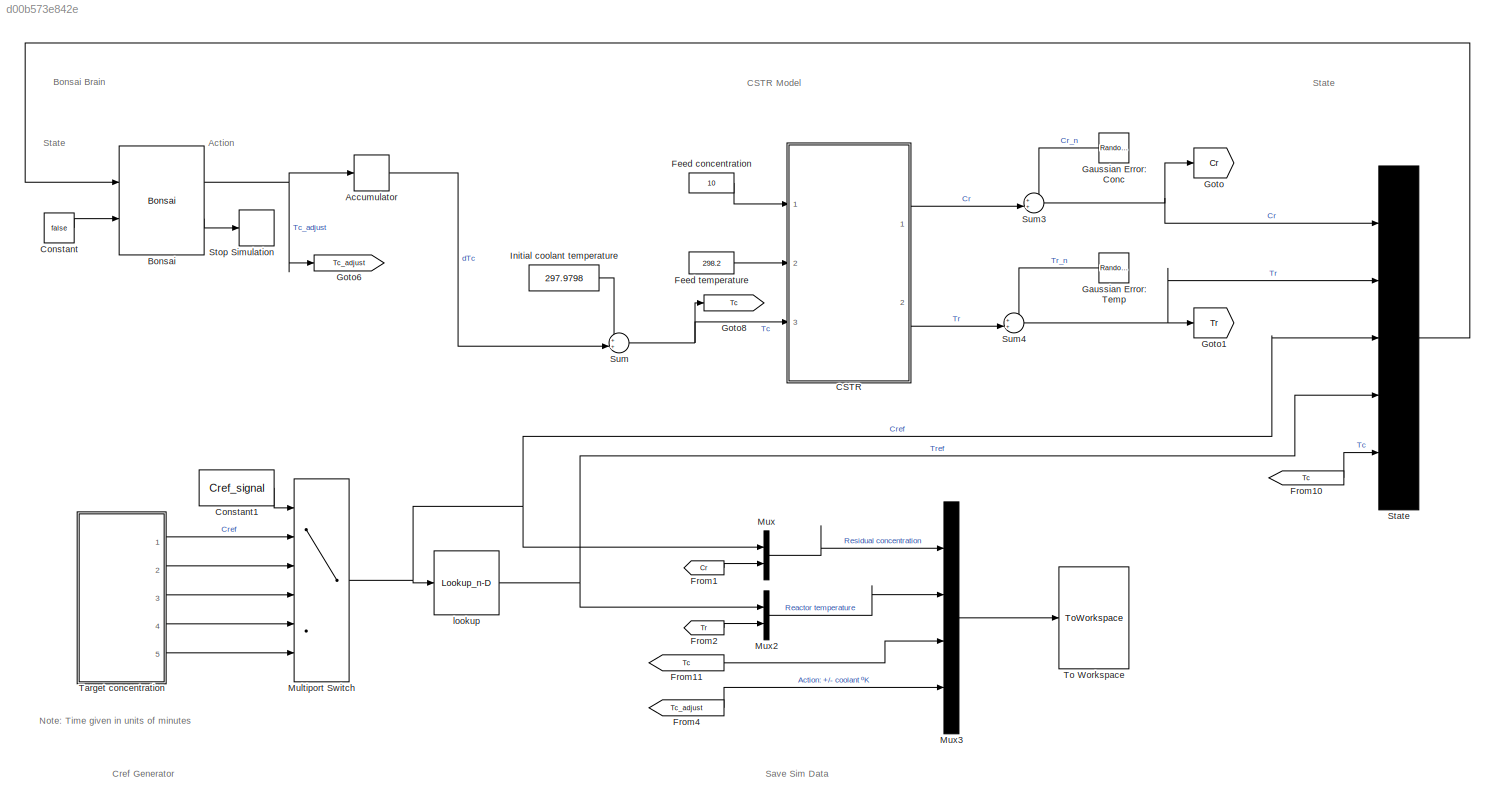
MODEL slx_d00b573e842e
KIND model
CONFIG AbsTol = auto
CONFIG EnableMultiTasking = on
CONFIG FixedStep = Ts
CONFIG MaxStep = auto
CONFIG MinStep = auto
CONFIG PreLoadFcn = Ts = 0.5;\nload cstr_data.mat
CONFIG RelTol = 1e-3
CONFIG SampleTimeConstraint = Unconstrained
CONFIG SolverName = FixedStepAuto
CONFIG StartTime = 0
CONFIG StopTime = 45
BLOCK [DiscreteIntegrator] Accumulator
  ICPrevOutput = DiscIntNeverNeededParam
  ICPrevScaledInput = DiscIntNeverNeededParam
  InitialConditionSetting = Auto
  IntegratorMethod = Integration: Backward Euler
  Ports = [1, 1]
  SampleTime = -1
  gainval = 1/Ts
BLOCK [Reference] Bonsai  REF=bonsai_library/Bonsai
  NameLocation = top
  Ports = [2, 2]
  SourceBlock = bonsai_library/Bonsai
  SourceProductName = Bonsai Toolbox
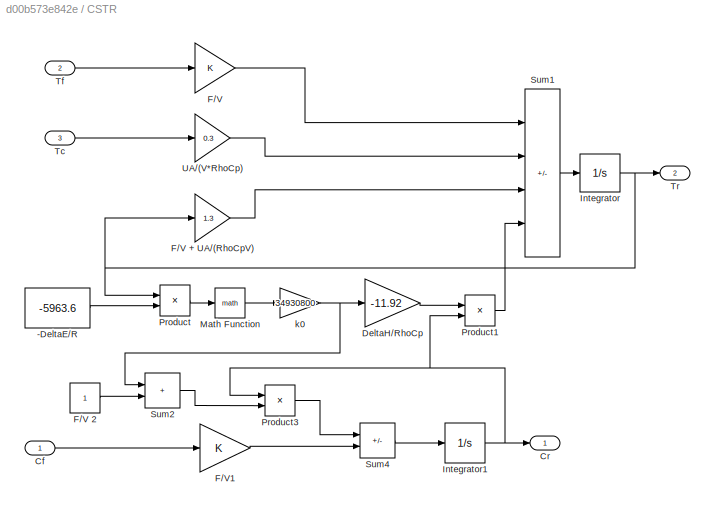
BLOCK [SubSystem] CSTR
  Ports = [3, 2]
  RequestExecContextInheritance = off
BLOCK [Constant] CSTR/-DeltaE//R
  SampleTime = 0
  Value = -5963.6
BLOCK [Inport] CSTR/Cf
BLOCK [Outport] CSTR/Cr
BLOCK [Gain] CSTR/DeltaH//RhoCp
  Gain = -11.92
  OutDataTypeStr = Inherit: Same as input
  ParamDataTypeStr = Inherit: Same as input
  SaturateOnIntegerOverflow = on
BLOCK [Gain] CSTR/F//V
  OutDataTypeStr = Inherit: Same as input
  ParamDataTypeStr = Inherit: Same as input
  SaturateOnIntegerOverflow = on
BLOCK [Gain] CSTR/F//V + UA//(RhoCpV)
  Gain = 1.3
  OutDataTypeStr = Inherit: Same as input
  ParamDataTypeStr = Inherit: Same as input
  SaturateOnIntegerOverflow = on
BLOCK [Constant] CSTR/F//V 2
  SampleTime = 0
BLOCK [Gain] CSTR/F//V1
  OutDataTypeStr = Inherit: Same as input
  ParamDataTypeStr = Inherit: Same as input
  SaturateOnIntegerOverflow = on
BLOCK [Integrator] CSTR/Integrator
  InitialCondition = TrEQ(1)
  LimitOutput = on
  LowerSaturationLimit = 0
  Ports = [1, 1]
BLOCK [Integrator] CSTR/Integrator1
  InitialCondition = CrEQ(1)
  LimitOutput = on
  LowerSaturationLimit = 0
  Ports = [1, 1]
BLOCK [Math] CSTR/Math Function
  Ports = [1, 1]
  SignedPower = on
BLOCK [Product] CSTR/Product
  InputSameDT = on
  Inputs = /*
  OutDataTypeStr = Inherit: Same as first input
  Ports = [2, 1]
  RndMeth = Zero
  SaturateOnIntegerOverflow = on
BLOCK [Product] CSTR/Product1
  InputSameDT = on
  OutDataTypeStr = Inherit: Same as first input
  Ports = [2, 1]
  RndMeth = Zero
  SaturateOnIntegerOverflow = on
BLOCK [Product] CSTR/Product3
  InputSameDT = on
  OutDataTypeStr = Inherit: Same as first input
  Ports = [2, 1]
  RndMeth = Zero
  SaturateOnIntegerOverflow = on
BLOCK [Sum] CSTR/Sum1
  IconShape = rectangular
  InputSameDT = on
  Inputs = ++--
  OutDataTypeStr = Inherit: Same as first input
  Ports = [4, 1]
  SaturateOnIntegerOverflow = on
BLOCK [Sum] CSTR/Sum2
  IconShape = rectangular
  InputSameDT = on
  OutDataTypeStr = Inherit: Same as first input
  Ports = [2, 1]
  SaturateOnIntegerOverflow = on
BLOCK [Sum] CSTR/Sum4
  IconShape = rectangular
  InputSameDT = on
  Inputs = -+
  OutDataTypeStr = Inherit: Same as first input
  Ports = [2, 1]
  SaturateOnIntegerOverflow = on
BLOCK [Inport] CSTR/Tc
  Port = 3
BLOCK [Inport] CSTR/Tf
  Port = 2
BLOCK [Outport] CSTR/Tr
  Port = 2
BLOCK [Gain] CSTR/UA//(V*RhoCp)
  Gain = 0.3
  OutDataTypeStr = Inherit: Same as input
  ParamDataTypeStr = Inherit: Same as input
  SaturateOnIntegerOverflow = on
BLOCK [Gain] CSTR/k0
  Gain = 34930800
  OutDataTypeStr = Inherit: Same as input
  ParamDataTypeStr = Inherit: Same as input
  SaturateOnIntegerOverflow = on
BLOCK [Constant] Constant
  Value = false
BLOCK [Constant] Constant1
  Value = Cref_signal
BLOCK [Constant] Feed concentration
  SampleTime = 0
  Value = 10
BLOCK [Constant] Feed temperature
  SampleTime = 0
  Value = 298.2
BLOCK [From] From1
  GotoTag = Cr
BLOCK [From] From10
  GotoTag = Tc
BLOCK [From] From11
  GotoTag = Tc
BLOCK [From] From2
  GotoTag = Tr
BLOCK [From] From4
  GotoTag = Tc_adjust
BLOCK [RandomNumber] Gaussian Error: Conc
  NameLocation = top
  SampleTime = Ts
  Seed = randi(100)
  Variance = conc_noise*conc_noise
BLOCK [RandomNumber] Gaussian Error: Temp
  NameLocation = top
  SampleTime = Ts
  Seed = randi(100)
  Variance = temp_noise*temp_noise
BLOCK [Goto] Goto
  GotoTag = Cr
BLOCK [Goto] Goto1
  GotoTag = Tr
BLOCK [Goto] Goto6
  GotoTag = Tc_adjust
BLOCK [Goto] Goto8
  GotoTag = Tc
BLOCK [Constant] Initial coolant temperature
  SampleTime = 0
  Value = 297.9798
BLOCK [MultiPortSwitch] Multiport Switch
  InputSameDT = off
  Inputs = 5
  Ports = [6, 1]
  SaturateOnIntegerOverflow = off
BLOCK [Mux] Mux
  DisplayOption = bar
  Inputs = 2
  Ports = [2, 1]
BLOCK [Mux] Mux2
  DisplayOption = bar
  Inputs = 2
  Ports = [2, 1]
BLOCK [Mux] Mux3
  DisplayOption = bar
  Ports = [4, 1]
BLOCK [Mux] State
  DisplayOption = signals
  Inputs = 5
  Ports = [5, 1]
BLOCK [Stop] Stop Simulation
BLOCK [Sum] Sum
  Inputs = ++|
  Ports = [2, 1]
BLOCK [Sum] Sum3
  Inputs = ++|
  Ports = [2, 1]
BLOCK [Sum] Sum4
  Inputs = ++|
  Ports = [2, 1]
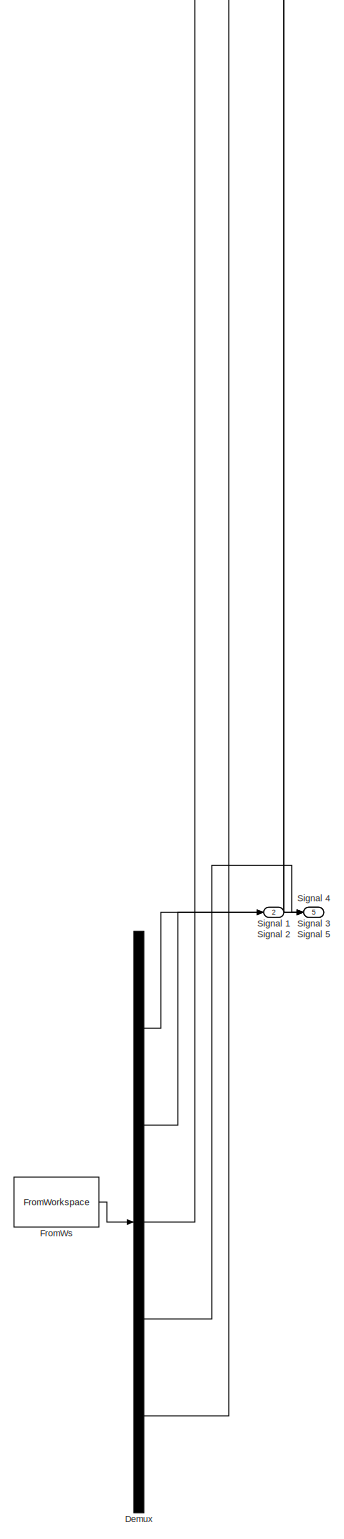
[diagram: Target concentration - part 1/1, full width, bottom band]
BLOCK [SubSystem] Target concentration
  ClipboardFcn = sigbuilder_block('clipboard');
  CloseFcn = sigbuilder_block('close');
  ContinueFcn = sigbuilder_block('continue');
  CopyFcn = sigbuilder_block('copy');
  DeleteFcn = sigbuilder_block('delete');
  LoadFcn = sigbuilder_block('load');
  MaskHideContents = on
  ModelCloseFcn = sigbuilder_block('modelClose');
  NameChangeFcn = sigbuilder_block('namechange');
  OpenFcn = sigbuilder_block('open',[991 219 801 438 ]);
  PauseFcn = sigbuilder_block('pause');
  Ports = [0, 5]
  PreSaveFcn = sigbuilder_block('preSave');
  RequestExecContextInheritance = off
  StartFcn = sigbuilder_block('start');
  StopFcn = sigbuilder_block('stop');
  Tag = STV Subsys
BLOCK [Demux] Target concentration/Demux
  DisplayOption = none
  Outputs = 5
  Ports = [1, 5]
  Tag = STV Demux
BLOCK [FromWorkspace] Target concentration/FromWs
  Tag = STV FromWs
  VariableName = tuvar
BLOCK [Outport] Target concentration/Signal 1
  Tag = STV Outport
BLOCK [Outport] Target concentration/Signal 2
  Port = 2
  Tag = STV Outport
BLOCK [Outport] Target concentration/Signal 3
  Port = 3
  Tag = STV Outport
BLOCK [Outport] Target concentration/Signal 4
  Port = 4
  Tag = STV Outport
BLOCK [Outport] Target concentration/Signal 5
  Port = 5
  Tag = STV Outport
BLOCK [ToWorkspace] To Workspace
  FixptAsFi = on
  MaxDataPoints = inf
  Ports = [1]
  SampleTime = -1
  VariableName = simout
BLOCK [Lookup_n-D] lookup
  BreakpointsForDimension1 = flipud(CrEQ)
  InputPortMap = u0
  LookupTableObject = ''
  NumberOfTableDimensions = 1
  Ports = [1, 1]
  RndMeth = Simplest
  Table = flipud(TrEQ)
ANNOTATION (root): Note: Time given in units of minutes
ANNOTATION (root): Action
ANNOTATION (root): State
ANNOTATION (root): Cref Generator
ANNOTATION (root): CSTR Model
ANNOTATION (root): Bonsai Brain
ANNOTATION (root): Save Sim Data
LINE Accumulator:1 -> Sum:2
NET Bonsai:1 -> Accumulator:1, Goto6:1
LINE Bonsai:2 -> Stop Simulation:1
LINE CSTR/-DeltaE//R:1 -> CSTR/Product:2
LINE CSTR/Cf:1 -> CSTR/F//V1:1
LINE CSTR/DeltaH//RhoCp:1 -> CSTR/Product1:1
LINE CSTR/F//V + UA//(RhoCpV):1 -> CSTR/Sum1:3
LINE CSTR/F//V 2:1 -> CSTR/Sum2:2
LINE CSTR/F//V1:1 -> CSTR/Sum4:2
LINE CSTR/F//V:1 -> CSTR/Sum1:1
NET CSTR/Integrator1:1 -> CSTR/Cr:1, CSTR/Product1:2, CSTR/Product3:1
NET CSTR/Integrator:1 -> CSTR/F//V + UA//(RhoCpV):1, CSTR/Product:1, CSTR/Tr:1
LINE CSTR/Math Function:1 -> CSTR/k0:1
LINE CSTR/Product1:1 -> CSTR/Sum1:4
LINE CSTR/Product3:1 -> CSTR/Sum4:1
LINE CSTR/Product:1 -> CSTR/Math Function:1
LINE CSTR/Sum1:1 -> CSTR/Integrator:1
LINE CSTR/Sum2:1 -> CSTR/Product3:2
LINE CSTR/Sum4:1 -> CSTR/Integrator1:1
LINE CSTR/Tc:1 -> CSTR/UA//(V*RhoCp):1
LINE CSTR/Tf:1 -> CSTR/F//V:1
LINE CSTR/UA//(V*RhoCp):1 -> CSTR/Sum1:2
NET CSTR/k0:1 -> CSTR/DeltaH//RhoCp:1, CSTR/Sum2:1
LINE CSTR:1 -> Sum3:2
LINE CSTR:2 -> Sum4:2
LINE Constant1:1 -> Multiport Switch:1
LINE Constant:1 -> Bonsai:2
LINE Feed concentration:1 -> CSTR:1
LINE Feed temperature:1 -> CSTR:2
LINE From10:1 -> State:5
LINE From11:1 -> Mux3:3
LINE From1:1 -> Mux:2
LINE From2:1 -> Mux2:2
LINE From4:1 -> Mux3:4
LINE Gaussian Error: Conc:1 -> Sum3:1
LINE Gaussian Error: Temp:1 -> Sum4:1
LINE Initial coolant temperature:1 -> Sum:1
NET Multiport Switch:1 -> Mux:1, State:3, lookup:1
LINE Mux2:1 -> Mux3:2
LINE Mux3:1 -> To Workspace:1
LINE Mux:1 -> Mux3:1
LINE State:1 -> Bonsai:1
NET Sum3:1 -> Goto:1, State:1
NET Sum4:1 -> Goto1:1, State:2
NET Sum:1 -> CSTR:3, Goto8:1
LINE Target concentration:1 -> Multiport Switch:2
LINE Target concentration:2 -> Multiport Switch:3
LINE Target concentration:3 -> Multiport Switch:4
LINE Target concentration:4 -> Multiport Switch:5
LINE Target concentration:5 -> Multiport Switch:6
NET lookup:1 -> Mux2:1, State:4
note: NET lines group one-source signal fan-out (src -> all destinations, sorted); 1:1 wires keep LINE
